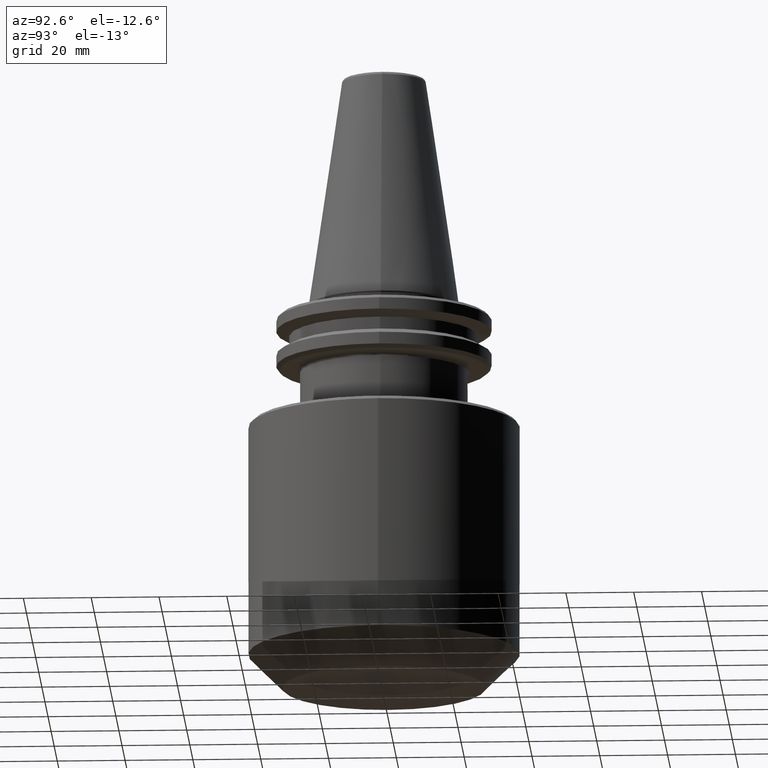
[diagram: clean part render]
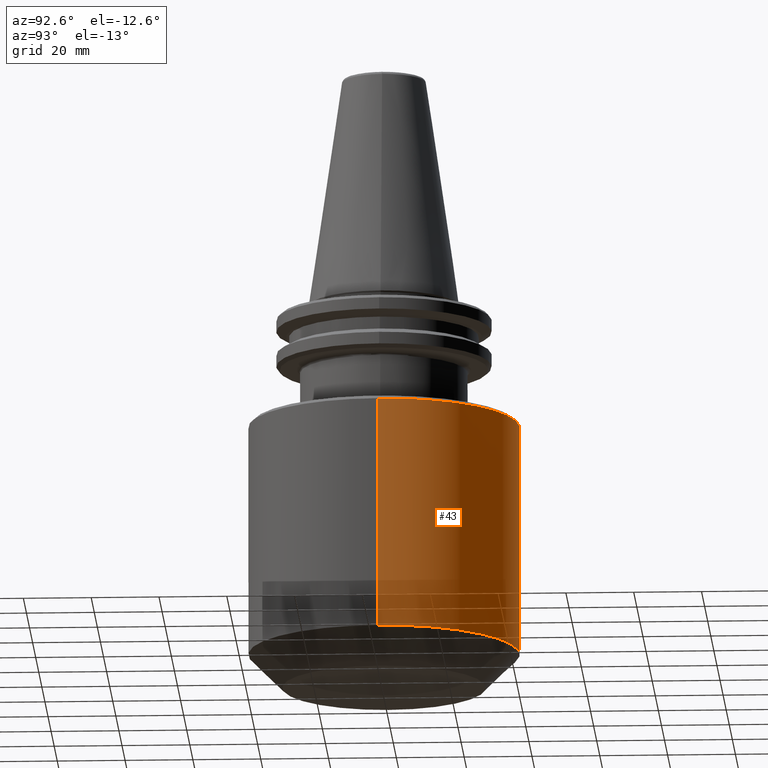
[diagram: same view with one face highlighted and labeled with its STEP entity id]
A machine part, auxiliary view. The second image highlights one B-rep face of the part: STEP entity #43.
In plain terms, the highlighted cylindrical surface (partial cylindrical patch) has radius 40 mm, axis along (0, 0, 1).
Its self-contained STEP definition (entity closure, byte-faithful):
#12 = DIRECTION ( 'NONE',  ( 1.000000000000000000, 0.0000000000000000000, 0.0000000000000000000 ) ) ;
#13 = DIRECTION ( 'NONE',  ( -0.0000000000000000000, -0.0000000000000000000, -1.000000000000000000 ) ) ;
#14 = CARTESIAN_POINT ( 'NONE',  ( 0.0000000000000000000, 0.0000000000000000000, -36.50000000000000700 ) ) ;
#43 = ADVANCED_FACE ( 'NONE', ( #786 ), #1558, .T. ) ;
#116 = AXIS2_PLACEMENT_3D ( 'NONE', #966, #976, #1108 ) ;
#144 = ORIENTED_EDGE ( 'NONE', *, *, #435, .T. ) ;
#306 = VERTEX_POINT ( 'NONE', #1469 ) ;
#310 = VERTEX_POINT ( 'NONE', #1068 ) ;
#312 = DIRECTION ( 'NONE',  ( 0.0000000000000000000, 0.0000000000000000000, 1.000000000000000000 ) ) ;
#313 = CARTESIAN_POINT ( 'NONE',  ( -39.99999999999999300, 4.898587196589412200E-015, 82.95681253582424100 ) ) ;
#410 = DIRECTION ( 'NONE',  ( 1.000000000000000000, 0.0000000000000000000, 0.0000000000000000000 ) ) ;
#411 = DIRECTION ( 'NONE',  ( -0.0000000000000000000, -0.0000000000000000000, -1.000000000000000000 ) ) ;
#414 = CARTESIAN_POINT ( 'NONE',  ( 0.0000000000000000000, 0.0000000000000000000, -36.50000000000000700 ) ) ;
#435 = EDGE_CURVE ( 'NONE', #729, #631, #1249, .T. ) ;
#449 = CARTESIAN_POINT ( 'NONE',  ( 39.99999999999998600, 0.0000000000000000000, -104.9999999999999600 ) ) ;
#506 = CARTESIAN_POINT ( 'NONE',  ( -39.99999999999998600, 4.898587196589411400E-015, -104.9999999999999600 ) ) ;
#522 = CIRCLE ( 'NONE', #1304, 39.99999999999999300 ) ;
#580 = AXIS2_PLACEMENT_3D ( 'NONE', #14, #13, #12 ) ;
#619 = DIRECTION ( 'NONE',  ( 1.000000000000000000, 0.0000000000000000000, 0.0000000000000000000 ) ) ;
#620 = DIRECTION ( 'NONE',  ( 0.0000000000000000000, 0.0000000000000000000, 1.000000000000000000 ) ) ;
#622 = CARTESIAN_POINT ( 'NONE',  ( 0.0000000000000000000, 0.0000000000000000000, -104.9999999999999600 ) ) ;
#631 = VERTEX_POINT ( 'NONE', #506 ) ;
#643 = ORIENTED_EDGE ( 'NONE', *, *, #702, .T. ) ;
#702 = EDGE_CURVE ( 'NONE', #306, #310, #522, .T. ) ;
#729 = VERTEX_POINT ( 'NONE', #449 ) ;
#749 = ORIENTED_EDGE ( 'NONE', *, *, #789, .T. ) ;
#786 = FACE_OUTER_BOUND ( 'NONE', #1911, .T. ) ;
#789 = EDGE_CURVE ( 'NONE', #631, #1245, #929, .T. ) ;
#929 = LINE ( 'NONE', #313, #1635 ) ;
#964 = EDGE_CURVE ( 'NONE', #1245, #306, #1183, .T. ) ;
#966 = CARTESIAN_POINT ( 'NONE',  ( 0.0000000000000000000, 0.0000000000000000000, 82.95681253582424100 ) ) ;
#976 = DIRECTION ( 'NONE',  ( 0.0000000000000000000, 0.0000000000000000000, 1.000000000000000000 ) ) ;
#1068 = CARTESIAN_POINT ( 'NONE',  ( 39.99999999999999300, 0.0000000000000000000, -36.50000000000000700 ) ) ;
#1108 = DIRECTION ( 'NONE',  ( 1.000000000000000000, 0.0000000000000000000, 0.0000000000000000000 ) ) ;
#1137 = ORIENTED_EDGE ( 'NONE', *, *, #1656, .F. ) ;
#1183 = CIRCLE ( 'NONE', #580, 39.99999999999999300 ) ;
#1230 = AXIS2_PLACEMENT_3D ( 'NONE', #622, #620, #619 ) ;
#1245 = VERTEX_POINT ( 'NONE', #1628 ) ;
#1249 = CIRCLE ( 'NONE', #1230, 39.99999999999999300 ) ;
#1304 = AXIS2_PLACEMENT_3D ( 'NONE', #414, #411, #410 ) ;
#1442 = VECTOR ( 'NONE', #1875, 1000.000000000000000 ) ;
#1469 = CARTESIAN_POINT ( 'NONE',  ( 0.0000000000000000000, 40.00000000000000000, -36.50000000000000700 ) ) ;
#1472 = ORIENTED_EDGE ( 'NONE', *, *, #964, .T. ) ;
#1558 = CYLINDRICAL_SURFACE ( 'NONE', #116, 39.99999999999999300 ) ;
#1628 = CARTESIAN_POINT ( 'NONE',  ( -39.99999999999999300, 4.898587196589412200E-015, -36.50000000000000700 ) ) ;
#1635 = VECTOR ( 'NONE', #312, 1000.000000000000000 ) ;
#1656 = EDGE_CURVE ( 'NONE', #729, #310, #1820, .T. ) ;
#1820 = LINE ( 'NONE', #1821, #1442 ) ;
#1821 = CARTESIAN_POINT ( 'NONE',  ( 39.99999999999999300, 0.0000000000000000000, 82.95681253582424100 ) ) ;
#1875 = DIRECTION ( 'NONE',  ( 0.0000000000000000000, 0.0000000000000000000, 1.000000000000000000 ) ) ;
#1911 = EDGE_LOOP ( 'NONE', ( #144, #749, #1472, #643, #1137 ) ) ;